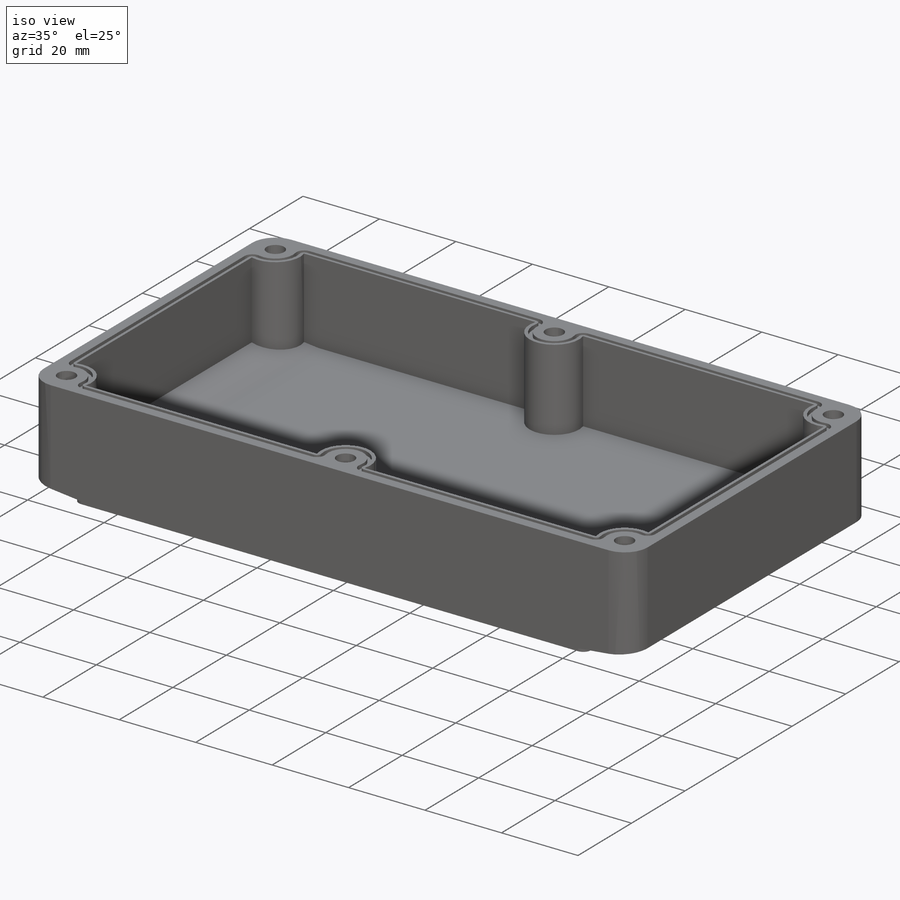
[diagram: iso view]
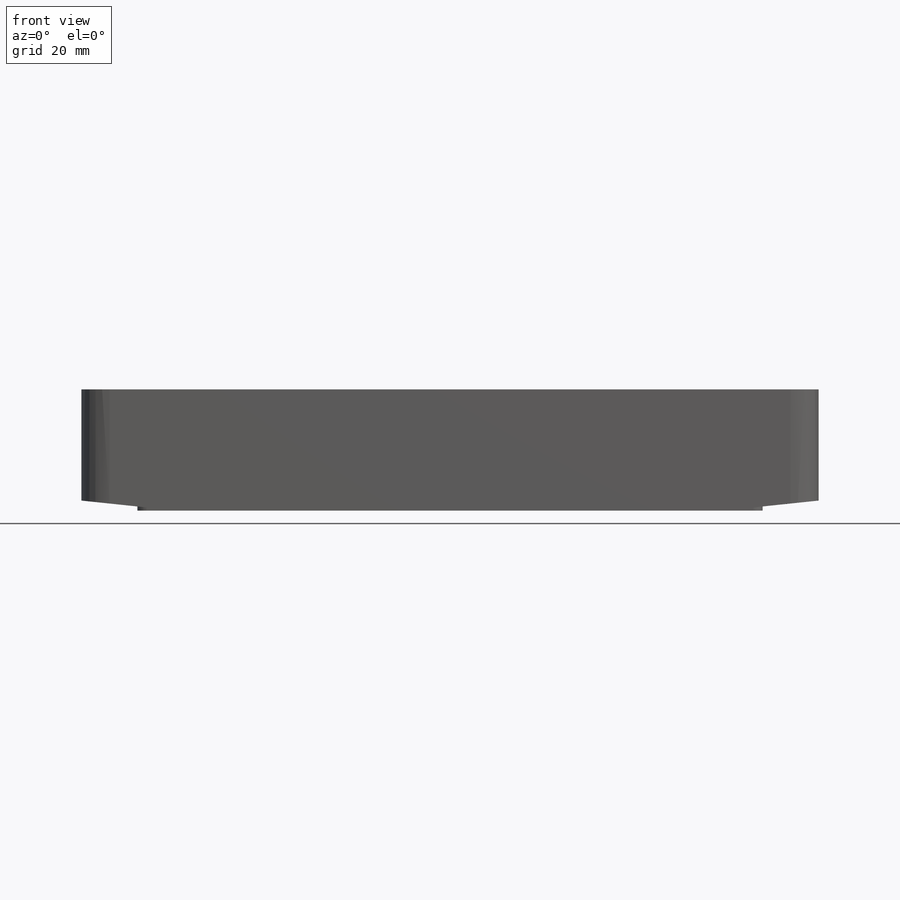
[diagram: front view]
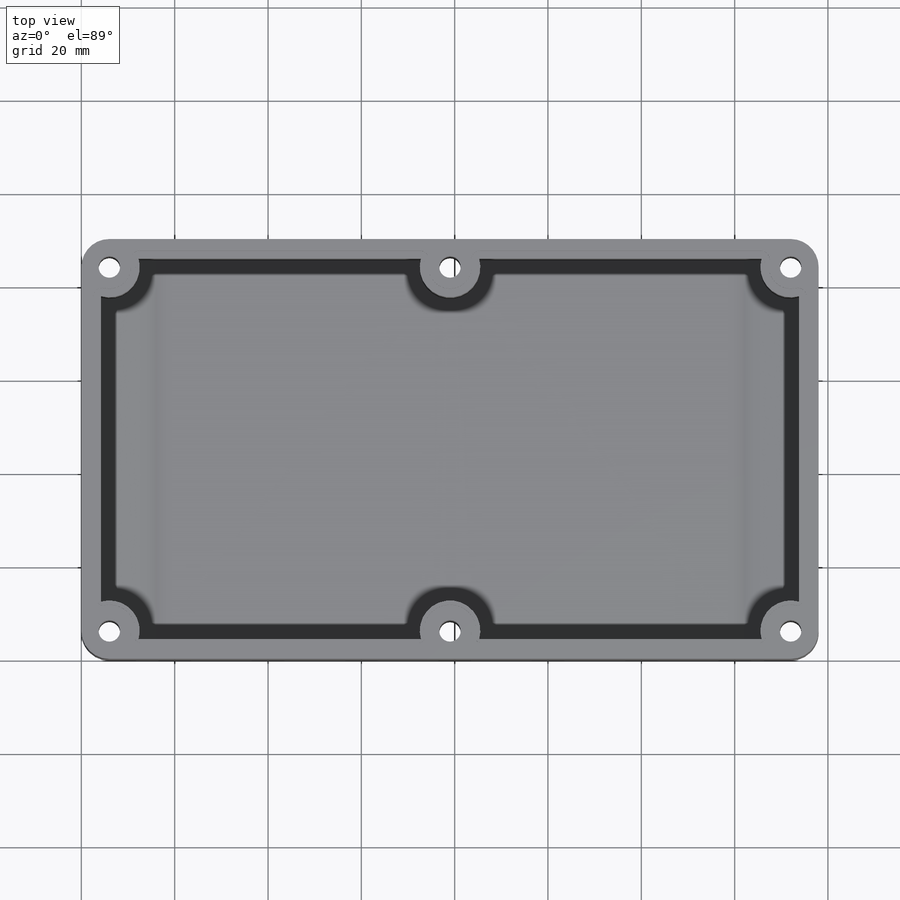
[diagram: top view]
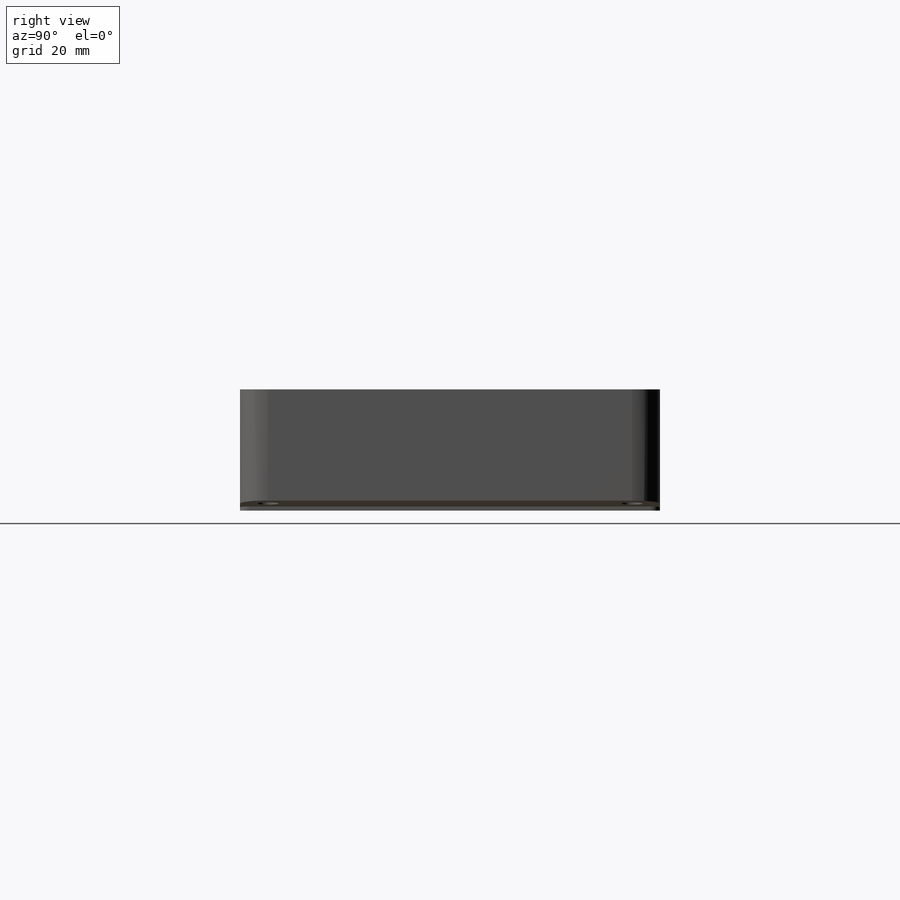
[diagram: right view]
SOLIDWORKS PART (.sldprt)
format: sldprt  version: not decoded by parser v0  size: 455,680 bytes
history: native  units: mm
features: sketch x6, fillet x2, cut_extrude x2, material x1, extrude x1, plane x1, hole x1, shell x1 (+13 scaffold rows collapsed)
feature tree (28):
  scaffold x13  (default folders/planes/origin — collapsed)
  material  "Material <not specified>"
  sketch  "Sketch1"  dims[D1=90.0mm D2=158.0mm]
  extrude  "Boss-Extrude1"  Depth=26mm
  fillet  "Fillet1"  Radius=6mm
  sketch  "Sketch3"  dims[D1=134.0mm]
  cut_extrude  "Cut-Extrude1"  Depth=0.9mm
  fillet  "Fillet2"  Radius=2mm
  plane  "Plane1"  Offset=79mm
  hole  "Hole1"  Diameter=4.6mm Depth=26mm
  sketch  "Sketch5"  dims[D1=146.0mm D2=73.0mm D3=78.0mm D4=12.7mm]
  sketch  "Sketch4"  dims[c1.D1=~97.659253deg c1.D2=~82.982399deg c1.Diameter=4.6mm c2.D2=100.0mm c2.D3=~82.982399deg c2.D4=90.0deg c3.D3=~97.716715deg c3.Depth=26.0mm c3.Drill Angle=118.0deg]
  sketch  "Sketch6"  dims[c1.D4=1.0mm c1.D3=7.0mm c1.D2=7.0mm c2.D3=3.0mm c2.D1=2.0mm c2.D2=3.0mm c3.D3=3.0mm]
  cut_extrude  "Cut-Extrude2"  Depth=0.5mm
  shell  "Shell1"  Thickness=4.2mm
  sketch  "Sketch7"  dims[c1.D2=1.0mm c1.D1=1.0mm c2.D1=1.0mm c2.D5=1.0mm c2.D6=1.0mm c2.D7=5.0mm]
decode coverage: 13 of 13 modeling features carry decoded parameters
note: ~ marks probable driven/reference dimensions
note: suppression state not decoded; provenance and decode notes live in map.json
